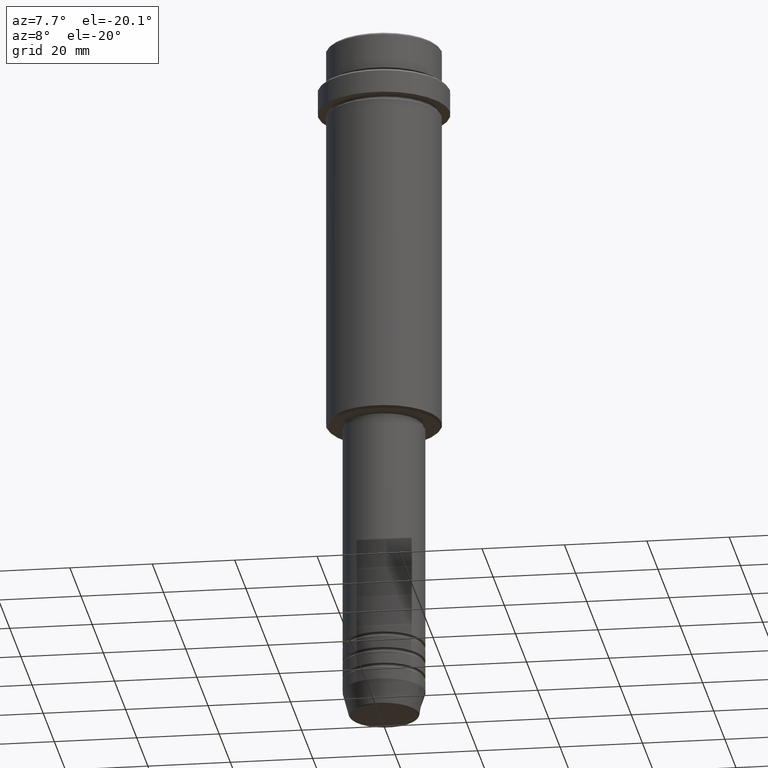
[diagram: clean part render]
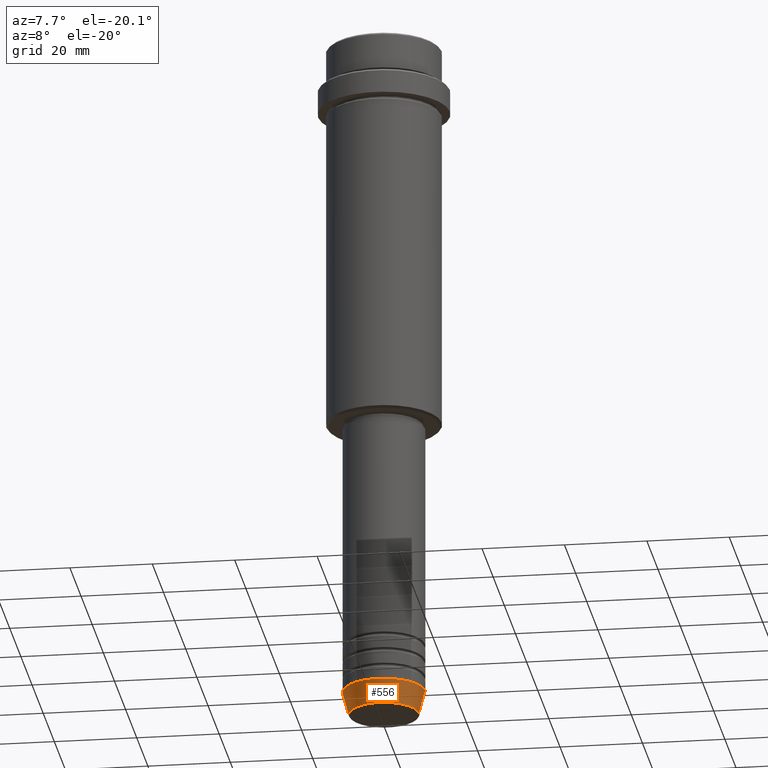
[diagram: same view with one face highlighted and labeled with its STEP entity id]
A machine part, auxiliary view. The second image highlights one B-rep face of the part: STEP entity #556.
In plain terms, the highlighted conical surface has half-angle 15 deg.
Its self-contained STEP definition (entity closure, byte-faithful):
#20 = CARTESIAN_POINT ( 'NONE',  ( 8.491604264568309191, 0.000000000000000000, -169.6294095225512990 ) ) ;
#39 = DIRECTION ( 'NONE',  ( -0.000000000000000000, -0.000000000000000000, 1.000000000000000000 ) ) ;
#50 = CIRCLE ( 'NONE', #251, 10.00000000000000000 ) ;
#61 = DIRECTION ( 'NONE',  ( -0.2588190451025211281, 3.169619151431769872E-17, 0.9659258262890680902 ) ) ;
#66 = EDGE_LOOP ( 'NONE', ( #1095, #779, #189, #600 ) ) ;
#189 = ORIENTED_EDGE ( 'NONE', *, *, #1320, .T. ) ;
#233 = CARTESIAN_POINT ( 'NONE',  ( -10.00000000000000000, 1.224646799147353256E-15, -164.0000000000000000 ) ) ;
#251 = AXIS2_PLACEMENT_3D ( 'NONE', #842, #516, #961 ) ;
#295 = VERTEX_POINT ( 'NONE', #233 ) ;
#373 = VERTEX_POINT ( 'NONE', #1256 ) ;
#381 = LINE ( 'NONE', #393, #1376 ) ;
#393 = CARTESIAN_POINT ( 'NONE',  ( 10.00000000000000000, 0.000000000000000000, -164.0000000000000000 ) ) ;
#470 = DIRECTION ( 'NONE',  ( -0.000000000000000000, -0.000000000000000000, 1.000000000000000000 ) ) ;
#486 = LINE ( 'NONE', #934, #621 ) ;
#516 = DIRECTION ( 'NONE',  ( -0.000000000000000000, -0.000000000000000000, 1.000000000000000000 ) ) ;
#556 = ADVANCED_FACE ( 'NONE', ( #1226 ), #593, .T. ) ;
#577 = DIRECTION ( 'NONE',  ( 1.000000000000000000, 0.000000000000000000, 0.000000000000000000 ) ) ;
#593 = CONICAL_SURFACE ( 'NONE', #780, 10.00000000000000000, 0.2617993877991498519 ) ;
#600 = ORIENTED_EDGE ( 'NONE', *, *, #1363, .F. ) ;
#607 = VERTEX_POINT ( 'NONE', #20 ) ;
#621 = VECTOR ( 'NONE', #61, 1000.000000000000114 ) ;
#736 = AXIS2_PLACEMENT_3D ( 'NONE', #1019, #470, #772 ) ;
#772 = DIRECTION ( 'NONE',  ( 1.000000000000000000, 0.000000000000000000, 0.000000000000000000 ) ) ;
#779 = ORIENTED_EDGE ( 'NONE', *, *, #1099, .T. ) ;
#780 = AXIS2_PLACEMENT_3D ( 'NONE', #1013, #39, #577 ) ;
#842 = CARTESIAN_POINT ( 'NONE',  ( 0.000000000000000000, 0.000000000000000000, -164.0000000000000000 ) ) ;
#934 = CARTESIAN_POINT ( 'NONE',  ( -10.00000000000000000, 1.224646799147353256E-15, -164.0000000000000000 ) ) ;
#961 = DIRECTION ( 'NONE',  ( 1.000000000000000000, 0.000000000000000000, 0.000000000000000000 ) ) ;
#1013 = CARTESIAN_POINT ( 'NONE',  ( 0.000000000000000000, 0.000000000000000000, -164.0000000000000000 ) ) ;
#1019 = CARTESIAN_POINT ( 'NONE',  ( 0.000000000000000000, 0.000000000000000000, -169.6294095225512990 ) ) ;
#1041 = VERTEX_POINT ( 'NONE', #1246 ) ;
#1045 = DIRECTION ( 'NONE',  ( 0.2588190451025211281, 0.000000000000000000, 0.9659258262890680902 ) ) ;
#1095 = ORIENTED_EDGE ( 'NONE', *, *, #1133, .F. ) ;
#1099 = EDGE_CURVE ( 'NONE', #1041, #607, #1374, .T. ) ;
#1133 = EDGE_CURVE ( 'NONE', #1041, #295, #486, .T. ) ;
#1226 = FACE_OUTER_BOUND ( 'NONE', #66, .T. ) ;
#1246 = CARTESIAN_POINT ( 'NONE',  ( -8.491604264568309191, 1.132284198685156387E-15, -169.6294095225512990 ) ) ;
#1256 = CARTESIAN_POINT ( 'NONE',  ( 10.00000000000000000, 0.000000000000000000, -164.0000000000000000 ) ) ;
#1320 = EDGE_CURVE ( 'NONE', #607, #373, #381, .T. ) ;
#1363 = EDGE_CURVE ( 'NONE', #295, #373, #50, .T. ) ;
#1374 = CIRCLE ( 'NONE', #736, 8.491604264568309191 ) ;
#1376 = VECTOR ( 'NONE', #1045, 1000.000000000000114 ) ;